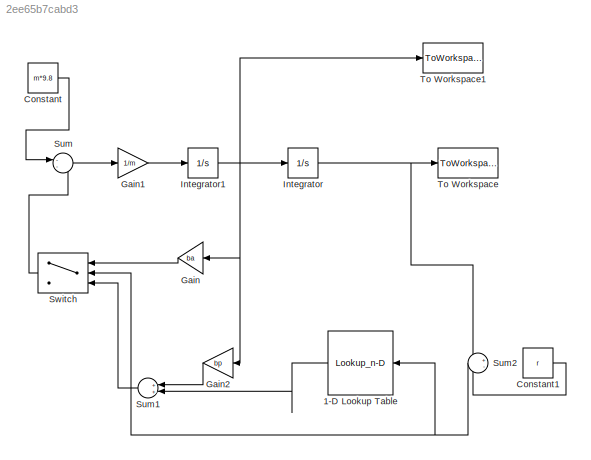
MODEL slx_2ee65b7cabd3
KIND model
CONFIG AbsTol = auto
CONFIG EnableMultiTasking = on
CONFIG FixedStep = auto
CONFIG MaxStep = auto
CONFIG MinStep = auto
CONFIG RelTol = 1e-3
CONFIG SampleTimeConstraint = Unconstrained
CONFIG Solver = VariableStepAuto
CONFIG SolverName = VariableStepAuto
CONFIG StartTime = 0.0
CONFIG StopTime = 10
BLOCK [Lookup_n-D] 1-D Lookup Table
  BreakpointsForDimension1 = [0.000152979,0.000299869,0.000439218,0.000573908,0.000701165,0.000827118,0.000954278,0.001083536,0.001209584,0.001340158,0.001478477,0.00161775,0.001752221,0.001887395,0.002024889]
  InternalRulePriority = Speed
  NumberOfTableDimensions = 1
  Ports = [1, 1]
  RndMeth = Simplest
  Table = [0.0686,0.4214,1.029,1.8424,3.0282,4.4492,6.0564,7.84,10.241,12.74,14.798,16.905,19.6392,22.344,24.843]
BLOCK [Constant] Constant
  Value = m*9.8
BLOCK [Constant] Constant1
  Value = r
BLOCK [Gain] Gain
  Gain = ba
  OutDataTypeStr = Inherit: Inherit via internal rule
  ParamDataTypeStr = Inherit: Inherit via internal rule
  SaturateOnIntegerOverflow = off
BLOCK [Gain] Gain1
  Gain = 1/m
  OutDataTypeStr = Inherit: Inherit via internal rule
  ParamDataTypeStr = Inherit: Inherit via internal rule
  SaturateOnIntegerOverflow = off
BLOCK [Gain] Gain2
  Gain = bp
  OutDataTypeStr = Inherit: Inherit via internal rule
  ParamDataTypeStr = Inherit: Inherit via internal rule
  SaturateOnIntegerOverflow = off
BLOCK [Integrator] Integrator
  InitialCondition = y0
  Ports = [1, 1]
BLOCK [Integrator] Integrator1
  InitialCondition = v0y
  Ports = [1, 1]
BLOCK [Sum] Sum
  IconShape = round
  InputSameDT = off
  Inputs = --
  OutDataTypeStr = Inherit: Inherit via internal rule
  Ports = [2, 1]
  SaturateOnIntegerOverflow = off
BLOCK [Sum] Sum1
  IconShape = round
  InputSameDT = off
  OutDataTypeStr = Inherit: Inherit via internal rule
  Ports = [2, 1]
  SaturateOnIntegerOverflow = off
BLOCK [Sum] Sum2
  IconShape = round
  InputSameDT = off
  Inputs = +-
  OutDataTypeStr = Inherit: Inherit via internal rule
  Ports = [2, 1]
  SaturateOnIntegerOverflow = off
BLOCK [Switch] Switch
  InputSameDT = off
  SaturateOnIntegerOverflow = off
BLOCK [ToWorkspace] To Workspace
  FixptAsFi = on
  MaxDataPoints = inf
  Ports = [1]
  SampleTime = 0.01
  SaveFormat = Structure With Time
  VariableName = y
BLOCK [ToWorkspace] To Workspace1
  FixptAsFi = on
  MaxDataPoints = inf
  Ports = [1]
  SampleTime = 0.01
  SaveFormat = Structure With Time
  VariableName = vy
LINE 1-D Lookup Table:1 -> Sum1:2
LINE Constant1:1 -> Sum2:2
LINE Constant:1 -> Sum:1
LINE Gain1:1 -> Integrator1:1
LINE Gain2:1 -> Sum1:1
LINE Gain:1 -> Switch:1
NET Integrator1:1 -> Gain2:1, Gain:1, Integrator:1, To Workspace1:1
NET Integrator:1 -> Sum2:1, To Workspace:1
LINE Sum1:1 -> Switch:3
NET Sum2:1 -> 1-D Lookup Table:1, Switch:2
LINE Sum:1 -> Gain1:1
LINE Switch:1 -> Sum:2
note: NET lines group one-source signal fan-out (src -> all destinations, sorted); 1:1 wires keep LINE
